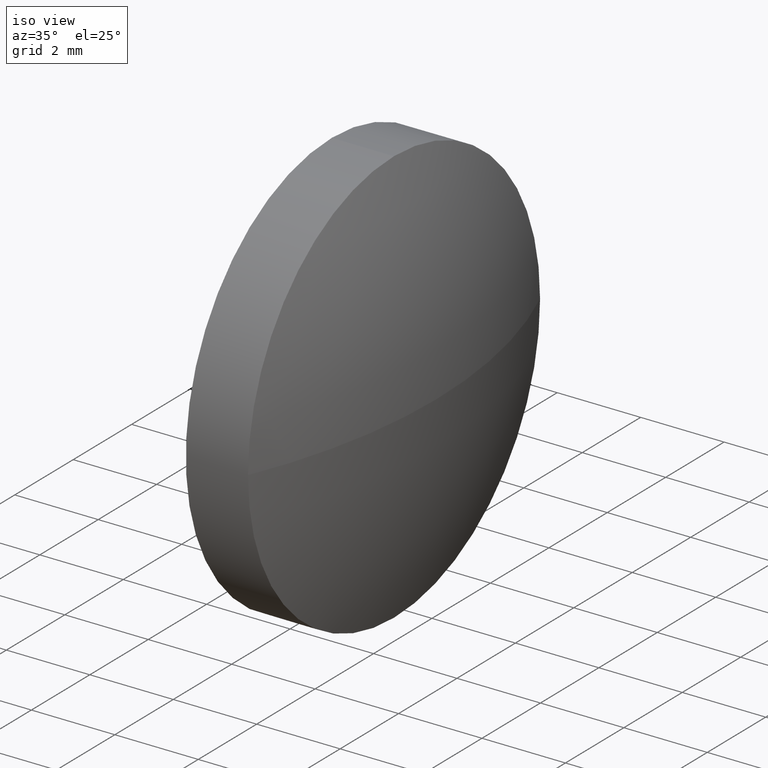
[diagram: clean part render]
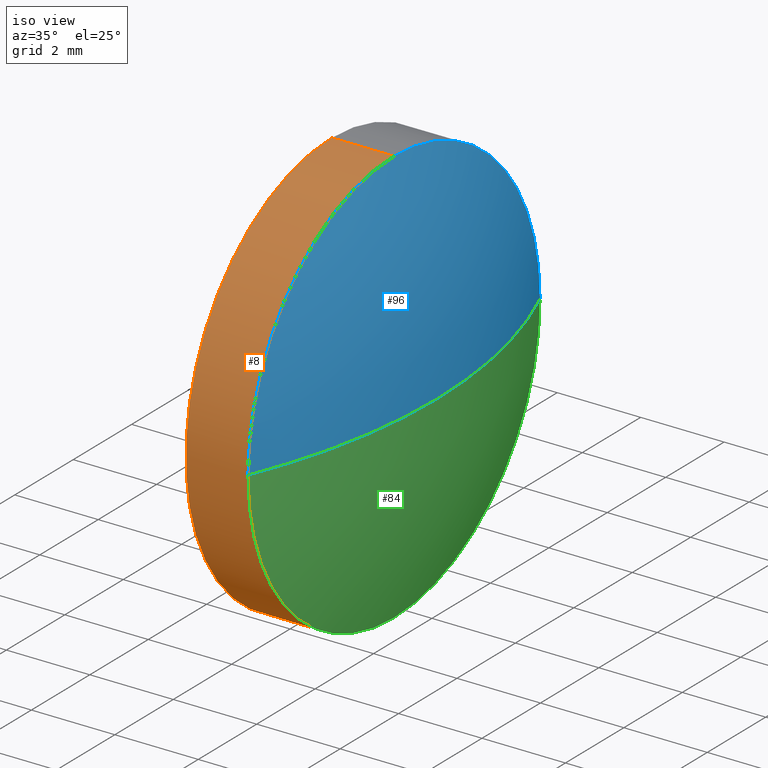
[diagram: same view with three faces highlighted in distinct colors, each labeled with its STEP entity id]
A machine part, iso view with three faces highlighted in distinct colors.
Their STEP definitions:

[orange] entity #8 — the highlighted cylindrical surface (partial cylindrical patch) has radius 5 mm, axis along (-1, -0, -0).
#7 = VERTEX_POINT ( 'NONE', #115 ) ;
#8 = ADVANCED_FACE ( 'NONE', ( #32 ), #22, .T. ) ;
#11 = DIRECTION ( 'NONE',  ( -1.000000000000000000, -0.0000000000000000000, -0.0000000000000000000 ) ) ;
#20 = EDGE_CURVE ( 'NONE', #81, #162, #181, .T. ) ;
#22 = CYLINDRICAL_SURFACE ( 'NONE', #29, 5.000000000000004400 ) ;
#29 = AXIS2_PLACEMENT_3D ( 'NONE', #50, #11, #100 ) ;
#32 = FACE_OUTER_BOUND ( 'NONE', #169, .T. ) ;
#41 = CARTESIAN_POINT ( 'NONE',  ( 662.1498540969860200, 171.2161113071353800, 5.000000000000004400 ) ) ;
#42 = EDGE_CURVE ( 'NONE', #162, #44, #147, .T. ) ;
#44 = VERTEX_POINT ( 'NONE', #41 ) ;
#50 = CARTESIAN_POINT ( 'NONE',  ( 661.3521818429206900, 171.2161113071353800, 0.0000000000000000000 ) ) ;
#52 = CIRCLE ( 'NONE', #65, 5.000000000000004400 ) ;
#53 = AXIS2_PLACEMENT_3D ( 'NONE', #113, #129, #103 ) ;
#54 = CARTESIAN_POINT ( 'NONE',  ( 661.3521818429206900, 171.2161113071353800, 5.000000000000004400 ) ) ;
#55 = DIRECTION ( 'NONE',  ( 0.0000000000000000000, 0.0000000000000000000, 1.000000000000000000 ) ) ;
#65 = AXIS2_PLACEMENT_3D ( 'NONE', #112, #69, #184 ) ;
#69 = DIRECTION ( 'NONE',  ( -1.000000000000000000, -0.0000000000000000000, -0.0000000000000000000 ) ) ;
#73 = CARTESIAN_POINT ( 'NONE',  ( 663.6398540969860300, 166.2161113071354900, 0.0000000000000000000 ) ) ;
#76 = DIRECTION ( 'NONE',  ( -1.000000000000000000, -0.0000000000000000000, -0.0000000000000000000 ) ) ;
#81 = VERTEX_POINT ( 'NONE', #73 ) ;
#83 = EDGE_CURVE ( 'NONE', #7, #81, #52, .T. ) ;
#85 = ORIENTED_EDGE ( 'NONE', *, *, #42, .T. ) ;
#87 = DIRECTION ( 'NONE',  ( -1.000000000000000000, -0.0000000000000000000, -0.0000000000000000000 ) ) ;
#88 = ORIENTED_EDGE ( 'NONE', *, *, #150, .F. ) ;
#91 = ORIENTED_EDGE ( 'NONE', *, *, #83, .T. ) ;
#92 = DIRECTION ( 'NONE',  ( -1.000000000000000000, -0.0000000000000000000, -0.0000000000000000000 ) ) ;
#100 = DIRECTION ( 'NONE',  ( 0.0000000000000000000, 0.0000000000000000000, 1.000000000000000000 ) ) ;
#103 = DIRECTION ( 'NONE',  ( 0.0000000000000000000, 0.0000000000000000000, 1.000000000000000000 ) ) ;
#104 = CARTESIAN_POINT ( 'NONE',  ( 661.3521818429206900, 171.2161113071353800, -5.000000000000004400 ) ) ;
#108 = EDGE_CURVE ( 'NONE', #124, #44, #180, .T. ) ;
#112 = CARTESIAN_POINT ( 'NONE',  ( 663.6398540969860300, 171.2161113071353800, 0.0000000000000000000 ) ) ;
#113 = CARTESIAN_POINT ( 'NONE',  ( 663.6398540969860300, 171.2161113071353800, 0.0000000000000000000 ) ) ;
#114 = LINE ( 'NONE', #104, #151 ) ;
#115 = CARTESIAN_POINT ( 'NONE',  ( 663.6398540969860300, 171.2161113071353800, -5.000000000000004400 ) ) ;
#119 = CARTESIAN_POINT ( 'NONE',  ( 662.1498540969860200, 171.2161113071353800, -5.000000000000004400 ) ) ;
#124 = VERTEX_POINT ( 'NONE', #119 ) ;
#129 = DIRECTION ( 'NONE',  ( -1.000000000000000000, -0.0000000000000000000, -0.0000000000000000000 ) ) ;
#136 = CARTESIAN_POINT ( 'NONE',  ( 662.1498540969860200, 171.2161113071353800, 0.0000000000000000000 ) ) ;
#138 = ORIENTED_EDGE ( 'NONE', *, *, #108, .F. ) ;
#141 = VECTOR ( 'NONE', #87, 1000.000000000000000 ) ;
#147 = LINE ( 'NONE', #54, #141 ) ;
#150 = EDGE_CURVE ( 'NONE', #7, #124, #114, .T. ) ;
#151 = VECTOR ( 'NONE', #76, 1000.000000000000000 ) ;
#160 = AXIS2_PLACEMENT_3D ( 'NONE', #136, #92, #55 ) ;
#162 = VERTEX_POINT ( 'NONE', #176 ) ;
#169 = EDGE_LOOP ( 'NONE', ( #88, #91, #172, #85, #138 ) ) ;
#172 = ORIENTED_EDGE ( 'NONE', *, *, #20, .T. ) ;
#176 = CARTESIAN_POINT ( 'NONE',  ( 663.6398540969860300, 171.2161113071353800, 5.000000000000004400 ) ) ;
#180 = CIRCLE ( 'NONE', #160, 5.000000000000004400 ) ;
#181 = CIRCLE ( 'NONE', #53, 5.000000000000004400 ) ;
#184 = DIRECTION ( 'NONE',  ( 0.0000000000000000000, 0.0000000000000000000, 1.000000000000000000 ) ) ;

[blue] entity #96 — the highlighted spherical surface has radius 12.8812 mm.
#2 = DIRECTION ( 'NONE',  ( 0.0000000000000000000, 0.0000000000000000000, -1.000000000000000000 ) ) ;
#9 = CARTESIAN_POINT ( 'NONE',  ( 664.6498540969859100, 171.2161113071354600, 0.0000000000000000000 ) ) ;
#14 = ORIENTED_EDGE ( 'NONE', *, *, #20, .F. ) ;
#16 = CARTESIAN_POINT ( 'NONE',  ( 663.6398540969860300, 171.2161113071353800, 0.0000000000000000000 ) ) ;
#18 = CIRCLE ( 'NONE', #58, 12.88123762376225300 ) ;
#19 = VERTEX_POINT ( 'NONE', #9 ) ;
#20 = EDGE_CURVE ( 'NONE', #81, #162, #181, .T. ) ;
#31 = SPHERICAL_SURFACE ( 'NONE', #98, 12.88123762376226400 ) ;
#33 = DIRECTION ( 'NONE',  ( 0.0000000000000000000, -1.000000000000000000, 0.0000000000000000000 ) ) ;
#35 = AXIS2_PLACEMENT_3D ( 'NONE', #16, #116, #121 ) ;
#40 = DIRECTION ( 'NONE',  ( 0.0000000000000000000, -1.000000000000000000, -1.224646799147354200E-016 ) ) ;
#53 = AXIS2_PLACEMENT_3D ( 'NONE', #113, #129, #103 ) ;
#58 = AXIS2_PLACEMENT_3D ( 'NONE', #131, #186, #40 ) ;
#62 = ORIENTED_EDGE ( 'NONE', *, *, #74, .T. ) ;
#73 = CARTESIAN_POINT ( 'NONE',  ( 663.6398540969860300, 166.2161113071354900, 0.0000000000000000000 ) ) ;
#74 = EDGE_CURVE ( 'NONE', #19, #126, #18, .T. ) ;
#77 = CIRCLE ( 'NONE', #35, 5.000000000000004400 ) ;
#81 = VERTEX_POINT ( 'NONE', #73 ) ;
#90 = DIRECTION ( 'NONE',  ( 0.0000000000000000000, 0.0000000000000000000, 1.000000000000000000 ) ) ;
#96 = ADVANCED_FACE ( 'NONE', ( #153 ), #31, .T. ) ;
#98 = AXIS2_PLACEMENT_3D ( 'NONE', #156, #90, #33 ) ;
#103 = DIRECTION ( 'NONE',  ( 0.0000000000000000000, 0.0000000000000000000, 1.000000000000000000 ) ) ;
#107 = EDGE_LOOP ( 'NONE', ( #167, #62, #140, #14 ) ) ;
#113 = CARTESIAN_POINT ( 'NONE',  ( 663.6398540969860300, 171.2161113071353800, 0.0000000000000000000 ) ) ;
#116 = DIRECTION ( 'NONE',  ( -1.000000000000000000, -0.0000000000000000000, -0.0000000000000000000 ) ) ;
#120 = EDGE_CURVE ( 'NONE', #162, #126, #77, .T. ) ;
#121 = DIRECTION ( 'NONE',  ( 0.0000000000000000000, 0.0000000000000000000, 1.000000000000000000 ) ) ;
#126 = VERTEX_POINT ( 'NONE', #137 ) ;
#129 = DIRECTION ( 'NONE',  ( -1.000000000000000000, -0.0000000000000000000, -0.0000000000000000000 ) ) ;
#131 = CARTESIAN_POINT ( 'NONE',  ( 651.7686164732236900, 171.2161113071354600, 0.0000000000000000000 ) ) ;
#137 = CARTESIAN_POINT ( 'NONE',  ( 663.6398540969860300, 176.2161113071353800, 6.123233995736657800E-016 ) ) ;
#140 = ORIENTED_EDGE ( 'NONE', *, *, #120, .F. ) ;
#152 = CIRCLE ( 'NONE', #178, 12.88123762376225300 ) ;
#153 = FACE_OUTER_BOUND ( 'NONE', #107, .T. ) ;
#154 = EDGE_CURVE ( 'NONE', #19, #81, #152, .T. ) ;
#156 = CARTESIAN_POINT ( 'NONE',  ( 651.7686164732236900, 171.2161113071354600, 0.0000000000000000000 ) ) ;
#162 = VERTEX_POINT ( 'NONE', #176 ) ;
#167 = ORIENTED_EDGE ( 'NONE', *, *, #154, .F. ) ;
#174 = CARTESIAN_POINT ( 'NONE',  ( 651.7686164732236900, 171.2161113071354600, 0.0000000000000000000 ) ) ;
#176 = CARTESIAN_POINT ( 'NONE',  ( 663.6398540969860300, 171.2161113071353800, 5.000000000000004400 ) ) ;
#177 = DIRECTION ( 'NONE',  ( -1.000000000000000000, 0.0000000000000000000, 0.0000000000000000000 ) ) ;
#178 = AXIS2_PLACEMENT_3D ( 'NONE', #174, #2, #177 ) ;
#181 = CIRCLE ( 'NONE', #53, 5.000000000000004400 ) ;
#186 = DIRECTION ( 'NONE',  ( 0.0000000000000000000, -1.224646799147353200E-016, 1.000000000000000000 ) ) ;

[green] entity #84 — the highlighted spherical surface has radius 12.8812 mm.
#2 = DIRECTION ( 'NONE',  ( 0.0000000000000000000, 0.0000000000000000000, -1.000000000000000000 ) ) ;
#7 = VERTEX_POINT ( 'NONE', #115 ) ;
#9 = CARTESIAN_POINT ( 'NONE',  ( 664.6498540969859100, 171.2161113071354600, 0.0000000000000000000 ) ) ;
#18 = CIRCLE ( 'NONE', #58, 12.88123762376225300 ) ;
#19 = VERTEX_POINT ( 'NONE', #9 ) ;
#23 = ORIENTED_EDGE ( 'NONE', *, *, #74, .F. ) ;
#26 = CARTESIAN_POINT ( 'NONE',  ( 651.7686164732236900, 171.2161113071354600, 0.0000000000000000000 ) ) ;
#39 = EDGE_LOOP ( 'NONE', ( #23, #56, #94, #102 ) ) ;
#40 = DIRECTION ( 'NONE',  ( 0.0000000000000000000, -1.000000000000000000, -1.224646799147354200E-016 ) ) ;
#47 = EDGE_CURVE ( 'NONE', #126, #7, #63, .T. ) ;
#52 = CIRCLE ( 'NONE', #65, 5.000000000000004400 ) ;
#56 = ORIENTED_EDGE ( 'NONE', *, *, #154, .T. ) ;
#58 = AXIS2_PLACEMENT_3D ( 'NONE', #131, #186, #40 ) ;
#63 = CIRCLE ( 'NONE', #128, 5.000000000000004400 ) ;
#65 = AXIS2_PLACEMENT_3D ( 'NONE', #112, #69, #184 ) ;
#69 = DIRECTION ( 'NONE',  ( -1.000000000000000000, -0.0000000000000000000, -0.0000000000000000000 ) ) ;
#70 = DIRECTION ( 'NONE',  ( 0.0000000000000000000, -1.000000000000000000, 0.0000000000000000000 ) ) ;
#73 = CARTESIAN_POINT ( 'NONE',  ( 663.6398540969860300, 166.2161113071354900, 0.0000000000000000000 ) ) ;
#74 = EDGE_CURVE ( 'NONE', #19, #126, #18, .T. ) ;
#81 = VERTEX_POINT ( 'NONE', #73 ) ;
#83 = EDGE_CURVE ( 'NONE', #7, #81, #52, .T. ) ;
#84 = ADVANCED_FACE ( 'NONE', ( #97 ), #170, .T. ) ;
#89 = AXIS2_PLACEMENT_3D ( 'NONE', #26, #158, #70 ) ;
#94 = ORIENTED_EDGE ( 'NONE', *, *, #83, .F. ) ;
#97 = FACE_OUTER_BOUND ( 'NONE', #39, .T. ) ;
#102 = ORIENTED_EDGE ( 'NONE', *, *, #47, .F. ) ;
#112 = CARTESIAN_POINT ( 'NONE',  ( 663.6398540969860300, 171.2161113071353800, 0.0000000000000000000 ) ) ;
#115 = CARTESIAN_POINT ( 'NONE',  ( 663.6398540969860300, 171.2161113071353800, -5.000000000000004400 ) ) ;
#126 = VERTEX_POINT ( 'NONE', #137 ) ;
#127 = CARTESIAN_POINT ( 'NONE',  ( 663.6398540969860300, 171.2161113071353800, 0.0000000000000000000 ) ) ;
#128 = AXIS2_PLACEMENT_3D ( 'NONE', #127, #142, #173 ) ;
#131 = CARTESIAN_POINT ( 'NONE',  ( 651.7686164732236900, 171.2161113071354600, 0.0000000000000000000 ) ) ;
#137 = CARTESIAN_POINT ( 'NONE',  ( 663.6398540969860300, 176.2161113071353800, 6.123233995736657800E-016 ) ) ;
#142 = DIRECTION ( 'NONE',  ( -1.000000000000000000, -0.0000000000000000000, -0.0000000000000000000 ) ) ;
#152 = CIRCLE ( 'NONE', #178, 12.88123762376225300 ) ;
#154 = EDGE_CURVE ( 'NONE', #19, #81, #152, .T. ) ;
#158 = DIRECTION ( 'NONE',  ( 0.0000000000000000000, 0.0000000000000000000, 1.000000000000000000 ) ) ;
#170 = SPHERICAL_SURFACE ( 'NONE', #89, 12.88123762376226400 ) ;
#173 = DIRECTION ( 'NONE',  ( 0.0000000000000000000, 0.0000000000000000000, 1.000000000000000000 ) ) ;
#174 = CARTESIAN_POINT ( 'NONE',  ( 651.7686164732236900, 171.2161113071354600, 0.0000000000000000000 ) ) ;
#177 = DIRECTION ( 'NONE',  ( -1.000000000000000000, 0.0000000000000000000, 0.0000000000000000000 ) ) ;
#178 = AXIS2_PLACEMENT_3D ( 'NONE', #174, #2, #177 ) ;
#184 = DIRECTION ( 'NONE',  ( 0.0000000000000000000, 0.0000000000000000000, 1.000000000000000000 ) ) ;
#186 = DIRECTION ( 'NONE',  ( 0.0000000000000000000, -1.224646799147353200E-016, 1.000000000000000000 ) ) ;